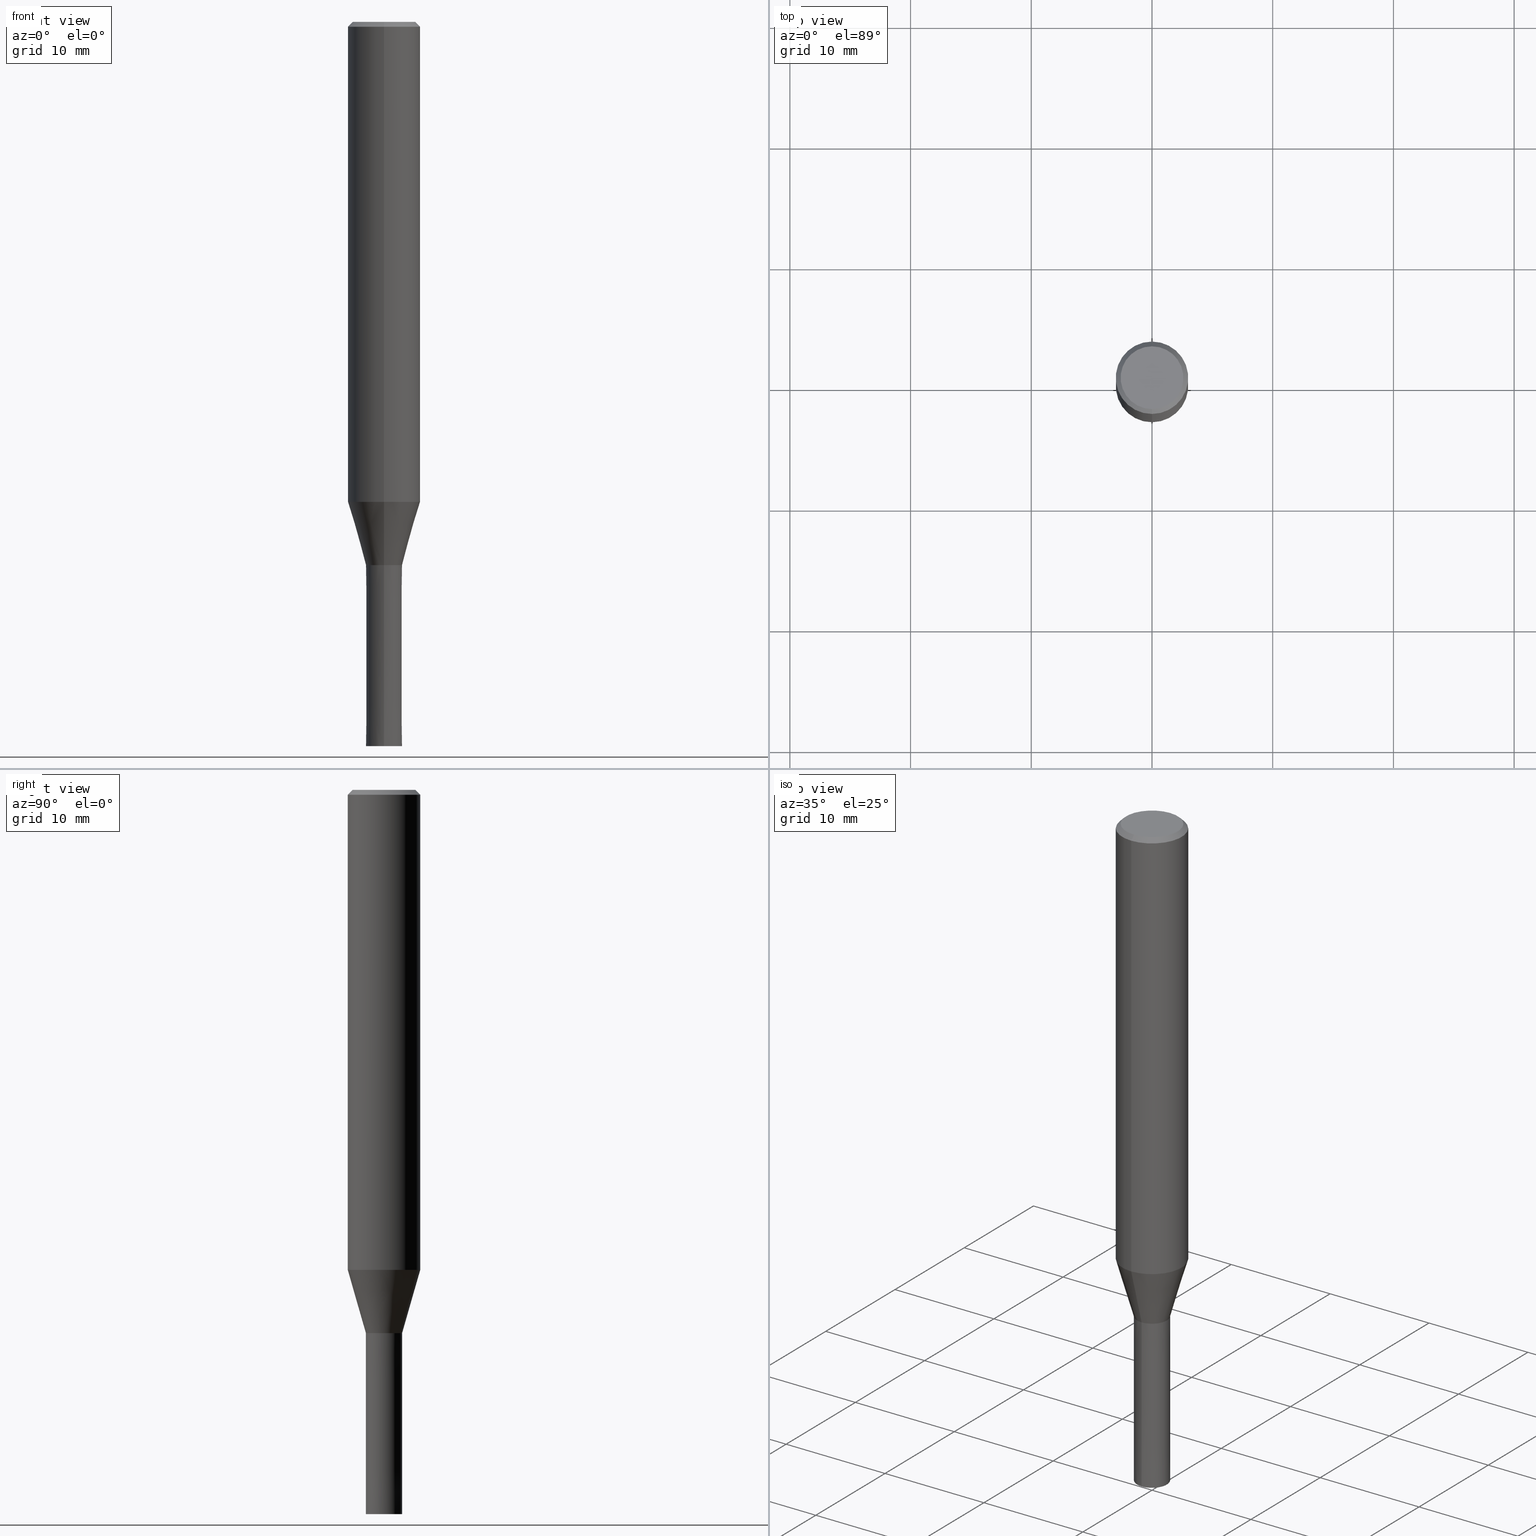
[diagram: canonical four-view strip — front | top / right | iso, engineering-drawing reading convention]
A machine part, canonical four-view strip (front | top / right | iso — engineering-drawing reading convention). The complete STEP part file that produces these views, byte-faithful:
ISO-10303-21;
HEADER;
FILE_DESCRIPTION(('no description'),'unknown implementation level');
FILE_NAME('HMS3030-1500-Huellk.stp','  ',('CIMSOURCE GmbH'),('CADClick - KiM GmbH - www.kimweb.de'),'unknown preprocess','ACIS','unknown authorization');
FILE_SCHEMA(('automotive_design'));
ENDSEC;
DATA;
#1=MECHANICAL_DESIGN_GEOMETRIC_PRESENTATION_REPRESENTATION(' ',(#14,#15,#16,#17,#18,#19,#20,#21,#22,#23,#24,#25,#26,#27,#28,#29,#30,#31,#32,#33,#34,#35,#36,#37,#38,#39,#40,#41,#42,#43,#44,#45,#46,#47,#48,#49,#50,#51,#52,#53,#54,#55,#56,#57,#58,#59,#60,#61,#62,#63,#64,#65,#66,#67,#68,#69,#70,#71,#72,#73,#74,#75,#76,#77,#78,#79,#80,#81,#82,#83,#84,#85,#86,#87,#88,#89),#10);
#2=PRODUCT_DEFINITION_CONTEXT('',#90,'design');
#3=APPLICATION_PROTOCOL_DEFINITION('INTERNATIONAL STANDARD','automotive_design',1994,#90);
#4=PRODUCT_CATEGORY_RELATIONSHIP('NONE','NONE',#91,#92);
#5=SHAPE_DEFINITION_REPRESENTATION(#93,#94);
#6=PRODUCT_DEFINITION_CONTEXT('',#95,'design');
#7=APPLICATION_PROTOCOL_DEFINITION('INTERNATIONAL STANDARD','automotive_design',1994,#95);
#8=PRODUCT_CATEGORY_RELATIONSHIP('NONE','NONE',#96,#97);
#9=SHAPE_DEFINITION_REPRESENTATION(#98,#99);
#10= (GEOMETRIC_REPRESENTATION_CONTEXT(3)GLOBAL_UNCERTAINTY_ASSIGNED_CONTEXT((#102))GLOBAL_UNIT_ASSIGNED_CONTEXT((#104,#105,#106))REPRESENTATION_CONTEXT('NONE','WORKSPACE'));
#14=STYLED_ITEM('',(#108),#109);
#15=STYLED_ITEM('',(#110),#111);
#16=STYLED_ITEM('',(#112),#113);
#17=STYLED_ITEM('',(#114),#115);
#18=STYLED_ITEM('',(#116),#117);
#19=STYLED_ITEM('',(#118),#119);
#20=STYLED_ITEM('',(#120),#121);
#21=STYLED_ITEM('',(#122),#123);
#22=STYLED_ITEM('',(#124),#125);
#23=STYLED_ITEM('',(#126),#127);
#24=STYLED_ITEM('',(#128),#129);
#25=STYLED_ITEM('',(#130),#131);
#26=STYLED_ITEM('',(#132),#133);
#27=STYLED_ITEM('',(#134),#135);
#28=STYLED_ITEM('',(#136),#137);
#29=STYLED_ITEM('',(#138),#139);
#30=STYLED_ITEM('',(#140),#141);
#31=STYLED_ITEM('',(#142),#143);
#32=STYLED_ITEM('',(#144),#145);
#33=STYLED_ITEM('',(#146),#147);
#34=STYLED_ITEM('',(#148),#149);
#35=STYLED_ITEM('',(#150),#151);
#36=STYLED_ITEM('',(#152),#153);
#37=STYLED_ITEM('',(#154),#155);
#38=STYLED_ITEM('',(#156),#157);
#39=STYLED_ITEM('',(#158),#159);
#40=STYLED_ITEM('',(#160),#161);
#41=STYLED_ITEM('',(#162),#163);
#42=STYLED_ITEM('',(#164),#165);
#43=STYLED_ITEM('',(#166),#167);
#44=STYLED_ITEM('',(#168),#169);
#45=STYLED_ITEM('',(#170),#171);
#46=STYLED_ITEM('',(#172),#173);
#47=STYLED_ITEM('',(#174),#175);
#48=STYLED_ITEM('',(#176),#177);
#49=STYLED_ITEM('',(#178),#179);
#50=STYLED_ITEM('',(#180),#181);
#51=STYLED_ITEM('',(#182),#183);
#52=STYLED_ITEM('',(#184),#185);
#53=STYLED_ITEM('',(#186),#187);
#54=STYLED_ITEM('',(#188),#189);
#55=STYLED_ITEM('',(#190),#191);
#56=STYLED_ITEM('',(#192),#193);
#57=STYLED_ITEM('',(#194),#195);
#58=STYLED_ITEM('',(#196),#197);
#59=STYLED_ITEM('',(#198),#199);
#60=STYLED_ITEM('',(#200),#201);
#61=STYLED_ITEM('',(#202),#203);
#62=STYLED_ITEM('',(#204),#205);
#63=STYLED_ITEM('',(#206),#207);
#64=STYLED_ITEM('',(#208),#209);
#65=STYLED_ITEM('',(#210),#211);
#66=STYLED_ITEM('',(#212),#213);
#67=STYLED_ITEM('',(#214),#215);
#68=STYLED_ITEM('',(#216),#217);
#69=STYLED_ITEM('',(#218),#219);
#70=STYLED_ITEM('',(#220),#221);
#71=STYLED_ITEM('',(#222),#223);
#72=STYLED_ITEM('',(#224),#225);
#73=STYLED_ITEM('',(#226),#227);
#74=STYLED_ITEM('',(#228),#229);
#75=STYLED_ITEM('',(#230),#231);
#76=STYLED_ITEM('',(#232),#233);
#77=STYLED_ITEM('',(#234),#235);
#78=STYLED_ITEM('',(#236),#237);
#79=STYLED_ITEM('',(#238),#239);
#80=STYLED_ITEM('',(#240),#241);
#81=STYLED_ITEM('',(#242),#243);
#82=STYLED_ITEM('',(#244),#245);
#83=STYLED_ITEM('',(#246),#247);
#84=STYLED_ITEM('',(#248),#249);
#85=STYLED_ITEM('',(#250),#251);
#86=STYLED_ITEM('',(#252),#253);
#87=STYLED_ITEM('',(#254),#255);
#88=STYLED_ITEM('',(#256),#257);
#89=STYLED_ITEM('',(#258),#259);
#90=APPLICATION_CONTEXT(' ');
#91=PRODUCT_CATEGORY('part','NONE');
#92=PRODUCT_RELATED_PRODUCT_CATEGORY('detail',' ',(#260));
#93=PRODUCT_DEFINITION_SHAPE('NONE','NONE',#261);
#94=ADVANCED_BREP_SHAPE_REPRESENTATION('1',(#243,#262),#10);
#95=APPLICATION_CONTEXT(' ');
#96=PRODUCT_CATEGORY('part','NONE');
#97=PRODUCT_RELATED_PRODUCT_CATEGORY('detail',' ',(#263));
#98=PRODUCT_DEFINITION_SHAPE('NONE','NONE',#264);
#99=ADVANCED_BREP_SHAPE_REPRESENTATION('2',(#211,#265),#10);
#102=UNCERTAINTY_MEASURE_WITH_UNIT(LENGTH_MEASURE(1.0E-006),#104,'','');
#104= (CONVERSION_BASED_UNIT('MILLIMETRE',#268)LENGTH_UNIT()NAMED_UNIT(#271));
#105= (NAMED_UNIT(#273)PLANE_ANGLE_UNIT()SI_UNIT($,.RADIAN.));
#106= (NAMED_UNIT(#273)SOLID_ANGLE_UNIT()SI_UNIT($,.STERADIAN.));
#108=PRESENTATION_STYLE_ASSIGNMENT((#279));
#109=EDGE_CURVE('',#139,#247,#280,.T.);
#110=PRESENTATION_STYLE_ASSIGNMENT((#281));
#111=VERTEX_POINT('',#282);
#112=PRESENTATION_STYLE_ASSIGNMENT((#283));
#113=EDGE_CURVE('',#157,#159,#284,.T.);
#114=PRESENTATION_STYLE_ASSIGNMENT((#285));
#115=VERTEX_POINT('',#286);
#116=PRESENTATION_STYLE_ASSIGNMENT((#287));
#117=EDGE_CURVE('',#215,#123,#288,.T.);
#118=PRESENTATION_STYLE_ASSIGNMENT((#289));
#119=EDGE_CURVE('',#215,#131,#290,.T.);
#120=PRESENTATION_STYLE_ASSIGNMENT((#291));
#121=EDGE_CURVE('',#155,#197,#292,.T.);
#122=PRESENTATION_STYLE_ASSIGNMENT((#293));
#123=VERTEX_POINT('',#294);
#124=PRESENTATION_STYLE_ASSIGNMENT((#295));
#125=VERTEX_POINT('',#296);
#126=PRESENTATION_STYLE_ASSIGNMENT((#297));
#127=VERTEX_POINT('',#298);
#128=PRESENTATION_STYLE_ASSIGNMENT((#299));
#129=EDGE_CURVE('',#225,#127,#300,.T.);
#130=PRESENTATION_STYLE_ASSIGNMENT((#301));
#131=VERTEX_POINT('',#302);
#132=PRESENTATION_STYLE_ASSIGNMENT((#303));
#133=EDGE_CURVE('',#157,#251,#304,.T.);
#134=PRESENTATION_STYLE_ASSIGNMENT((#305));
#135=ADVANCED_FACE('',(#306),#307,.T.);
#136=PRESENTATION_STYLE_ASSIGNMENT((#308));
#137=ADVANCED_FACE('',(#309),#310,.T.);
#138=PRESENTATION_STYLE_ASSIGNMENT((#311));
#139=VERTEX_POINT('',#312);
#140=PRESENTATION_STYLE_ASSIGNMENT((#313));
#141=ADVANCED_FACE('',(#314),#315,.T.);
#142=PRESENTATION_STYLE_ASSIGNMENT((#316));
#143=ADVANCED_FACE('',(#317),#318,.F.);
#144=PRESENTATION_STYLE_ASSIGNMENT((#319));
#145=EDGE_CURVE('',#225,#185,#320,.T.);
#146=PRESENTATION_STYLE_ASSIGNMENT((#321));
#147=EDGE_CURVE('',#161,#183,#322,.T.);
#148=PRESENTATION_STYLE_ASSIGNMENT((#323));
#149=ADVANCED_FACE('',(#324),#325,.T.);
#150=PRESENTATION_STYLE_ASSIGNMENT((#326));
#151=ADVANCED_FACE('',(#327),#328,.T.);
#152=PRESENTATION_STYLE_ASSIGNMENT((#329));
#153=EDGE_CURVE('',#247,#139,#330,.T.);
#154=PRESENTATION_STYLE_ASSIGNMENT((#331));
#155=VERTEX_POINT('',#332);
#156=PRESENTATION_STYLE_ASSIGNMENT((#333));
#157=VERTEX_POINT('',#334);
#158=PRESENTATION_STYLE_ASSIGNMENT((#335));
#159=VERTEX_POINT('',#336);
#160=PRESENTATION_STYLE_ASSIGNMENT((#337));
#161=VERTEX_POINT('',#338);
#162=PRESENTATION_STYLE_ASSIGNMENT((#339));
#163=EDGE_CURVE('',#127,#187,#340,.T.);
#164=PRESENTATION_STYLE_ASSIGNMENT((#341));
#165=EDGE_CURVE('',#227,#131,#342,.T.);
#166=PRESENTATION_STYLE_ASSIGNMENT((#343));
#167=ADVANCED_FACE('',(#344),#345,.T.);
#168=PRESENTATION_STYLE_ASSIGNMENT((#346));
#169=EDGE_CURVE('',#187,#185,#347,.T.);
#170=PRESENTATION_STYLE_ASSIGNMENT((#348));
#171=EDGE_CURVE('',#231,#197,#349,.T.);
#172=PRESENTATION_STYLE_ASSIGNMENT((#350));
#173=EDGE_CURVE('',#251,#247,#351,.T.);
#174=PRESENTATION_STYLE_ASSIGNMENT((#352));
#175=EDGE_CURVE('',#197,#155,#353,.T.);
#176=PRESENTATION_STYLE_ASSIGNMENT((#354));
#177=EDGE_CURVE('',#123,#227,#355,.T.);
#178=PRESENTATION_STYLE_ASSIGNMENT((#356));
#179=EDGE_CURVE('',#115,#251,#357,.T.);
#180=PRESENTATION_STYLE_ASSIGNMENT((#358));
#181=EDGE_CURVE('',#227,#123,#359,.T.);
#182=PRESENTATION_STYLE_ASSIGNMENT((#360));
#183=VERTEX_POINT('',#361);
#184=PRESENTATION_STYLE_ASSIGNMENT((#362));
#185=VERTEX_POINT('',#363);
#186=PRESENTATION_STYLE_ASSIGNMENT((#364));
#187=VERTEX_POINT('',#365);
#188=PRESENTATION_STYLE_ASSIGNMENT((#366));
#189=EDGE_CURVE('',#187,#127,#367,.T.);
#190=PRESENTATION_STYLE_ASSIGNMENT((#368));
#191=EDGE_CURVE('',#131,#215,#369,.T.);
#192=PRESENTATION_STYLE_ASSIGNMENT((#370));
#193=ADVANCED_FACE('',(#371,#372),#373,.T.);
#194=PRESENTATION_STYLE_ASSIGNMENT((#374));
#195=ADVANCED_FACE('',(#375),#376,.F.);
#196=PRESENTATION_STYLE_ASSIGNMENT((#377));
#197=VERTEX_POINT('',#378);
#198=PRESENTATION_STYLE_ASSIGNMENT((#379));
#199=ADVANCED_FACE('',(#380),#381,.T.);
#200=PRESENTATION_STYLE_ASSIGNMENT((#382));
#201=ADVANCED_FACE('',(#383),#384,.T.);
#202=PRESENTATION_STYLE_ASSIGNMENT((#385));
#203=EDGE_CURVE('',#159,#157,#386,.T.);
#204=PRESENTATION_STYLE_ASSIGNMENT((#387));
#205=EDGE_CURVE('',#155,#125,#388,.T.);
#206=PRESENTATION_STYLE_ASSIGNMENT((#389));
#207=ADVANCED_FACE('',(#390),#391,.T.);
#208=PRESENTATION_STYLE_ASSIGNMENT((#392));
#209=EDGE_CURVE('',#185,#225,#393,.T.);
#210=PRESENTATION_STYLE_ASSIGNMENT((#394));
#211=MANIFOLD_SOLID_BREP('2',#395);
#212=PRESENTATION_STYLE_ASSIGNMENT((#396));
#213=EDGE_CURVE('',#219,#111,#397,.T.);
#214=PRESENTATION_STYLE_ASSIGNMENT((#398));
#215=VERTEX_POINT('',#399);
#216=PRESENTATION_STYLE_ASSIGNMENT((#400));
#217=EDGE_CURVE('',#231,#125,#401,.T.);
#218=PRESENTATION_STYLE_ASSIGNMENT((#402));
#219=VERTEX_POINT('',#403);
#220=PRESENTATION_STYLE_ASSIGNMENT((#404));
#221=EDGE_CURVE('',#183,#219,#405,.T.);
#222=PRESENTATION_STYLE_ASSIGNMENT((#406));
#223=EDGE_CURVE('',#115,#159,#407,.T.);
#224=PRESENTATION_STYLE_ASSIGNMENT((#408));
#225=VERTEX_POINT('',#409);
#226=PRESENTATION_STYLE_ASSIGNMENT((#410));
#227=VERTEX_POINT('',#411);
#228=PRESENTATION_STYLE_ASSIGNMENT((#412));
#229=EDGE_CURVE('',#125,#231,#413,.T.);
#230=PRESENTATION_STYLE_ASSIGNMENT((#414));
#231=VERTEX_POINT('',#415);
#232=PRESENTATION_STYLE_ASSIGNMENT((#416));
#233=EDGE_CURVE('',#251,#115,#417,.T.);
#234=PRESENTATION_STYLE_ASSIGNMENT((#418));
#235=ADVANCED_FACE('',(#419),#420,.T.);
#236=PRESENTATION_STYLE_ASSIGNMENT((#421));
#237=ADVANCED_FACE('',(#422,#423),#424,.T.);
#238=PRESENTATION_STYLE_ASSIGNMENT((#425));
#239=EDGE_CURVE('',#111,#161,#426,.T.);
#240=PRESENTATION_STYLE_ASSIGNMENT((#427));
#241=ADVANCED_FACE('',(#428),#429,.T.);
#242=PRESENTATION_STYLE_ASSIGNMENT((#430));
#243=MANIFOLD_SOLID_BREP('1',#431);
#244=PRESENTATION_STYLE_ASSIGNMENT((#432));
#245=EDGE_CURVE('',#139,#115,#433,.T.);
#246=PRESENTATION_STYLE_ASSIGNMENT((#434));
#247=VERTEX_POINT('',#435);
#248=PRESENTATION_STYLE_ASSIGNMENT((#436));
#249=ADVANCED_FACE('',(#437,#438),#439,.T.);
#250=PRESENTATION_STYLE_ASSIGNMENT((#440));
#251=VERTEX_POINT('',#441);
#252=PRESENTATION_STYLE_ASSIGNMENT((#442));
#253=ADVANCED_FACE('',(#443,#444),#445,.T.);
#254=PRESENTATION_STYLE_ASSIGNMENT((#446));
#255=ADVANCED_FACE('',(#447),#448,.T.);
#256=PRESENTATION_STYLE_ASSIGNMENT((#449));
#257=EDGE_CURVE('',#219,#183,#450,.T.);
#258=PRESENTATION_STYLE_ASSIGNMENT((#451));
#259=EDGE_CURVE('',#161,#111,#452,.T.);
#260=PRODUCT('1','1','PART-1-DESC',(#453));
#261=PRODUCT_DEFINITION('NONE','NONE',#454,#2);
#262=AXIS2_PLACEMENT_3D('',#455,#456,#457);
#263=PRODUCT('2','2','PART-2-DESC',(#458));
#264=PRODUCT_DEFINITION('NONE','NONE',#459,#6);
#265=AXIS2_PLACEMENT_3D('',#460,#461,#462);
#268=LENGTH_MEASURE_WITH_UNIT(LENGTH_MEASURE(1.0),#463);
#271=DIMENSIONAL_EXPONENTS(1.0,0.0,0.0,0.0,0.0,0.0,0.0);
#273=DIMENSIONAL_EXPONENTS(0.0,0.0,0.0,0.0,0.0,0.0,0.0);
#279=CURVE_STYLE('',#464,POSITIVE_LENGTH_MEASURE(1.0E-006),#465);
#280=CIRCLE('',#466,3.0);
#281=POINT_STYLE(' ',#467,POSITIVE_LENGTH_MEASURE(1.0E-006),#468);
#282=CARTESIAN_POINT('',(8.26609288830105E-017,-0.675,-45.0));
#283=CURVE_STYLE('',#469,POSITIVE_LENGTH_MEASURE(1.0E-006),#470);
#284=CIRCLE('',#471,2.6);
#285=POINT_STYLE(' ',#472,POSITIVE_LENGTH_MEASURE(1.0E-006),#473);
#286=CARTESIAN_POINT('',(3.67381906146713E-016,-3.0,-0.399999999999999));
#287=CURVE_STYLE('',#474,POSITIVE_LENGTH_MEASURE(1.0E-006),#475);
#288=LINE('',#476,#477);
#289=CURVE_STYLE('',#478,POSITIVE_LENGTH_MEASURE(1.0E-006),#479);
#290=CIRCLE('',#480,0.675);
#291=CURVE_STYLE('',#481,POSITIVE_LENGTH_MEASURE(1.0E-006),#482);
#292=CIRCLE('',#483,2.99995);
#293=POINT_STYLE(' ',#484,POSITIVE_LENGTH_MEASURE(1.0E-006),#485);
#294=CARTESIAN_POINT('',(0.0,0.675,-59.9));
#295=POINT_STYLE(' ',#486,POSITIVE_LENGTH_MEASURE(1.0E-006),#487);
#296=CARTESIAN_POINT('',(0.0,1.49995,-45.0));
#297=POINT_STYLE(' ',#488,POSITIVE_LENGTH_MEASURE(1.0E-006),#489);
#298=CARTESIAN_POINT('',(0.0,1.5,-60.0));
#299=CURVE_STYLE('',#490,POSITIVE_LENGTH_MEASURE(1.0E-006),#491);
#300=LINE('',#492,#493);
#301=POINT_STYLE(' ',#494,POSITIVE_LENGTH_MEASURE(1.0E-006),#495);
#302=CARTESIAN_POINT('',(8.26609288830105E-017,-0.675,-45.0));
#303=CURVE_STYLE('',#496,POSITIVE_LENGTH_MEASURE(1.0E-006),#497);
#304=LINE('',#498,#499);
#305=SURFACE_STYLE_USAGE(.BOTH.,#500);
#306=FACE_OUTER_BOUND('',#501,.T.);
#307=CONICAL_SURFACE('',#502,2.24995,0.279258842899557);
#308=SURFACE_STYLE_USAGE(.BOTH.,#503);
#309=FACE_OUTER_BOUND('',#504,.T.);
#310=CYLINDRICAL_SURFACE('',#505,3.0);
#311=POINT_STYLE(' ',#506,POSITIVE_LENGTH_MEASURE(1.0E-006),#507);
#312=CARTESIAN_POINT('',(3.67381906146713E-016,-3.0,-39.769));
#313=SURFACE_STYLE_USAGE(.BOTH.,#508);
#314=FACE_OUTER_BOUND('',#509,.T.);
#315=CONICAL_SURFACE('',#510,1.49995,6.66666666656717E-006);
#316=SURFACE_STYLE_USAGE(.BOTH.,#511);
#317=FACE_OUTER_BOUND('',#512,.T.);
#318=CYLINDRICAL_SURFACE('',#513,0.675);
#319=CURVE_STYLE('',#514,POSITIVE_LENGTH_MEASURE(1.0E-006),#515);
#320=CIRCLE('',#516,1.4999);
#321=CURVE_STYLE('',#517,POSITIVE_LENGTH_MEASURE(1.0E-006),#518);
#322=LINE('',#519,#520);
#323=SURFACE_STYLE_USAGE(.BOTH.,#521);
#324=FACE_OUTER_BOUND('',#522,.T.);
#325=CONICAL_SURFACE('',#523,1.49995,6.66666666656717E-006);
#326=SURFACE_STYLE_USAGE(.BOTH.,#524);
#327=FACE_OUTER_BOUND('',#525,.T.);
#328=CYLINDRICAL_SURFACE('',#526,0.675);
#329=CURVE_STYLE('',#527,POSITIVE_LENGTH_MEASURE(1.0E-006),#528);
#330=CIRCLE('',#529,3.0);
#331=POINT_STYLE(' ',#530,POSITIVE_LENGTH_MEASURE(1.0E-006),#531);
#332=CARTESIAN_POINT('',(0.0,2.99995,-39.769));
#333=POINT_STYLE(' ',#532,POSITIVE_LENGTH_MEASURE(1.0E-006),#533);
#334=CARTESIAN_POINT('',(0.0,2.6,0.0));
#335=POINT_STYLE(' ',#534,POSITIVE_LENGTH_MEASURE(1.0E-006),#535);
#336=CARTESIAN_POINT('',(3.18397651993818E-016,-2.6,0.0));
#337=POINT_STYLE(' ',#536,POSITIVE_LENGTH_MEASURE(1.0E-006),#537);
#338=CARTESIAN_POINT('',(0.0,0.675,-45.0));
#339=CURVE_STYLE('',#538,POSITIVE_LENGTH_MEASURE(1.0E-006),#539);
#340=CIRCLE('',#540,1.5);
#341=CURVE_STYLE('',#541,POSITIVE_LENGTH_MEASURE(1.0E-006),#542);
#342=LINE('',#543,#544);
#343=SURFACE_STYLE_USAGE(.BOTH.,#545);
#344=FACE_OUTER_BOUND('',#546,.T.);
#345=CONICAL_SURFACE('',#547,2.24995,0.279258842899557);
#346=CURVE_STYLE('',#548,POSITIVE_LENGTH_MEASURE(1.0E-006),#549);
#347=LINE('',#550,#551);
#348=CURVE_STYLE('',#552,POSITIVE_LENGTH_MEASURE(1.0E-006),#553);
#349=LINE('',#554,#555);
#350=CURVE_STYLE('',#556,POSITIVE_LENGTH_MEASURE(1.0E-006),#557);
#351=LINE('',#558,#559);
#352=CURVE_STYLE('',#560,POSITIVE_LENGTH_MEASURE(1.0E-006),#561);
#353=CIRCLE('',#562,2.99995);
#354=CURVE_STYLE('',#563,POSITIVE_LENGTH_MEASURE(1.0E-006),#564);
#355=CIRCLE('',#565,0.675);
#356=CURVE_STYLE('',#566,POSITIVE_LENGTH_MEASURE(1.0E-006),#567);
#357=CIRCLE('',#568,3.0);
#358=CURVE_STYLE('',#569,POSITIVE_LENGTH_MEASURE(1.0E-006),#570);
#359=CIRCLE('',#571,0.675);
#360=POINT_STYLE(' ',#572,POSITIVE_LENGTH_MEASURE(1.0E-006),#573);
#361=CARTESIAN_POINT('',(0.0,0.675,-60.0));
#362=POINT_STYLE(' ',#574,POSITIVE_LENGTH_MEASURE(1.0E-006),#575);
#363=CARTESIAN_POINT('',(1.83678707009818E-016,-1.4999,-45.0));
#364=POINT_STYLE(' ',#576,POSITIVE_LENGTH_MEASURE(1.0E-006),#577);
#365=CARTESIAN_POINT('',(1.83690953073357E-016,-1.5,-60.0));
#366=CURVE_STYLE('',#578,POSITIVE_LENGTH_MEASURE(1.0E-006),#579);
#367=CIRCLE('',#580,1.5);
#368=CURVE_STYLE('',#581,POSITIVE_LENGTH_MEASURE(1.0E-006),#582);
#369=CIRCLE('',#583,0.675);
#370=SURFACE_STYLE_USAGE(.BOTH.,#584);
#371=FACE_OUTER_BOUND('',#585,.T.);
#372=FACE_BOUND('',#586,.T.);
#373=PLANE('',#587);
#374=SURFACE_STYLE_USAGE(.BOTH.,#588);
#375=FACE_OUTER_BOUND('',#589,.T.);
#376=CYLINDRICAL_SURFACE('',#590,0.675);
#377=POINT_STYLE(' ',#591,POSITIVE_LENGTH_MEASURE(1.0E-006),#592);
#378=CARTESIAN_POINT('',(3.67375783114944E-016,-2.99995,-39.769));
#379=SURFACE_STYLE_USAGE(.BOTH.,#593);
#380=FACE_OUTER_BOUND('',#594,.T.);
#381=CONICAL_SURFACE('',#595,2.8,0.78539816339745);
#382=SURFACE_STYLE_USAGE(.BOTH.,#596);
#383=FACE_OUTER_BOUND('',#597,.T.);
#384=CYLINDRICAL_SURFACE('',#598,0.675);
#385=CURVE_STYLE('',#599,POSITIVE_LENGTH_MEASURE(1.0E-006),#600);
#386=CIRCLE('',#601,2.6);
#387=CURVE_STYLE('',#602,POSITIVE_LENGTH_MEASURE(1.0E-006),#603);
#388=LINE('',#604,#605);
#389=SURFACE_STYLE_USAGE(.BOTH.,#606);
#390=FACE_OUTER_BOUND('',#607,.T.);
#391=PLANE('',#608);
#392=CURVE_STYLE('',#609,POSITIVE_LENGTH_MEASURE(1.0E-006),#610);
#393=CIRCLE('',#611,1.4999);
#394=SURFACE_STYLE_USAGE(.BOTH.,#612);
#395=CLOSED_SHELL('',(#195,#141,#237,#149,#249,#143));
#396=CURVE_STYLE('',#613,POSITIVE_LENGTH_MEASURE(1.0E-006),#614);
#397=LINE('',#615,#616);
#398=POINT_STYLE(' ',#617,POSITIVE_LENGTH_MEASURE(1.0E-006),#618);
#399=CARTESIAN_POINT('',(0.0,0.675,-45.0));
#400=CURVE_STYLE('',#619,POSITIVE_LENGTH_MEASURE(1.0E-006),#620);
#401=CIRCLE('',#621,1.49995);
#402=POINT_STYLE(' ',#622,POSITIVE_LENGTH_MEASURE(1.0E-006),#623);
#403=CARTESIAN_POINT('',(8.26609288830105E-017,-0.675,-60.0));
#404=CURVE_STYLE('',#624,POSITIVE_LENGTH_MEASURE(1.0E-006),#625);
#405=CIRCLE('',#626,0.675);
#406=CURVE_STYLE('',#627,POSITIVE_LENGTH_MEASURE(1.0E-006),#628);
#407=LINE('',#629,#630);
#408=POINT_STYLE(' ',#631,POSITIVE_LENGTH_MEASURE(1.0E-006),#632);
#409=CARTESIAN_POINT('',(0.0,1.4999,-45.0));
#410=POINT_STYLE(' ',#633,POSITIVE_LENGTH_MEASURE(1.0E-006),#634);
#411=CARTESIAN_POINT('',(8.26609288830105E-017,-0.675,-59.9));
#412=CURVE_STYLE('',#635,POSITIVE_LENGTH_MEASURE(1.0E-006),#636);
#413=CIRCLE('',#637,1.49995);
#414=POINT_STYLE(' ',#638,POSITIVE_LENGTH_MEASURE(1.0E-006),#639);
#415=CARTESIAN_POINT('',(1.83684830041587E-016,-1.49995,-45.0));
#416=CURVE_STYLE('',#640,POSITIVE_LENGTH_MEASURE(1.0E-006),#641);
#417=CIRCLE('',#642,3.0);
#418=SURFACE_STYLE_USAGE(.BOTH.,#643);
#419=FACE_OUTER_BOUND('',#644,.T.);
#420=CONICAL_SURFACE('',#645,2.8,0.78539816339745);
#421=SURFACE_STYLE_USAGE(.BOTH.,#646);
#422=FACE_OUTER_BOUND('',#647,.T.);
#423=FACE_BOUND('',#648,.T.);
#424=PLANE('',#649);
#425=CURVE_STYLE('',#650,POSITIVE_LENGTH_MEASURE(1.0E-006),#651);
#426=CIRCLE('',#652,0.675);
#427=SURFACE_STYLE_USAGE(.BOTH.,#653);
#428=FACE_OUTER_BOUND('',#654,.T.);
#429=CYLINDRICAL_SURFACE('',#655,3.0);
#430=SURFACE_STYLE_USAGE(.BOTH.,#656);
#431=CLOSED_SHELL('',(#201,#167,#241,#199,#193,#207,#235,#137,#135,#253,#151,#255));
#432=CURVE_STYLE('',#657,POSITIVE_LENGTH_MEASURE(1.0E-006),#658);
#433=LINE('',#659,#660);
#434=POINT_STYLE(' ',#661,POSITIVE_LENGTH_MEASURE(1.0E-006),#662);
#435=CARTESIAN_POINT('',(0.0,3.0,-39.769));
#436=SURFACE_STYLE_USAGE(.BOTH.,#663);
#437=FACE_OUTER_BOUND('',#664,.T.);
#438=FACE_BOUND('',#665,.T.);
#439=PLANE('',#666);
#440=POINT_STYLE(' ',#667,POSITIVE_LENGTH_MEASURE(1.0E-006),#668);
#441=CARTESIAN_POINT('',(0.0,3.0,-0.399999999999999));
#442=SURFACE_STYLE_USAGE(.BOTH.,#669);
#443=FACE_BOUND('',#670,.T.);
#444=FACE_OUTER_BOUND('',#671,.T.);
#445=PLANE('',#672);
#446=SURFACE_STYLE_USAGE(.BOTH.,#673);
#447=FACE_OUTER_BOUND('',#674,.T.);
#448=PLANE('',#675);
#449=CURVE_STYLE('',#676,POSITIVE_LENGTH_MEASURE(1.0E-006),#677);
#450=CIRCLE('',#678,0.675);
#451=CURVE_STYLE('',#679,POSITIVE_LENGTH_MEASURE(1.0E-006),#680);
#452=CIRCLE('',#681,0.675);
#453=PRODUCT_CONTEXT('',#90,'mechanical');
#454=PRODUCT_DEFINITION_FORMATION_WITH_SPECIFIED_SOURCE(' ','NONE',#260,.NOT_KNOWN.);
#455=CARTESIAN_POINT('',(0.0,0.0,0.0));
#456=DIRECTION('',(0.0,0.0,1.0));
#457=DIRECTION('',(1.0,0.0,0.0));
#458=PRODUCT_CONTEXT('',#95,'mechanical');
#459=PRODUCT_DEFINITION_FORMATION_WITH_SPECIFIED_SOURCE(' ','NONE',#263,.NOT_KNOWN.);
#460=CARTESIAN_POINT('',(0.0,0.0,0.0));
#461=DIRECTION('',(0.0,0.0,1.0));
#462=DIRECTION('',(1.0,0.0,0.0));
#463= (NAMED_UNIT(#271)LENGTH_UNIT()SI_UNIT(.MILLI.,.METRE.));
#464=DRAUGHTING_PRE_DEFINED_CURVE_FONT('continuous');
#465=COLOUR_RGB('',0.498039215803146,0.498039215803146,0.498039215803146);
#466=AXIS2_PLACEMENT_3D('',#683,#684,#685);
#467=PRE_DEFINED_MARKER('');
#468=COLOUR_RGB('',0.800000011920929,0.800000011920929,0.800000011920929);
#469=DRAUGHTING_PRE_DEFINED_CURVE_FONT('continuous');
#470=COLOUR_RGB('',0.498039215803146,0.498039215803146,0.498039215803146);
#471=AXIS2_PLACEMENT_3D('',#686,#687,#688);
#472=PRE_DEFINED_MARKER('');
#473=COLOUR_RGB('',0.498039215803146,0.498039215803146,0.498039215803146);
#474=DRAUGHTING_PRE_DEFINED_CURVE_FONT('continuous');
#475=COLOUR_RGB('',0.498039215803146,0.498039215803146,0.498039215803146);
#476=CARTESIAN_POINT('',(-8.26609288830105E-017,0.675,-52.45));
#477=VECTOR('',#689,1.0);
#478=DRAUGHTING_PRE_DEFINED_CURVE_FONT('continuous');
#479=COLOUR_RGB('',0.498039215803146,0.498039215803146,0.498039215803146);
#480=AXIS2_PLACEMENT_3D('',#690,#691,#692);
#481=DRAUGHTING_PRE_DEFINED_CURVE_FONT('continuous');
#482=COLOUR_RGB('',0.498039215803146,0.498039215803146,0.498039215803146);
#483=AXIS2_PLACEMENT_3D('',#693,#694,#695);
#484=PRE_DEFINED_MARKER('');
#485=COLOUR_RGB('',0.498039215803146,0.498039215803146,0.498039215803146);
#486=PRE_DEFINED_MARKER('');
#487=COLOUR_RGB('',0.498039215803146,0.498039215803146,0.498039215803146);
#488=PRE_DEFINED_MARKER('');
#489=COLOUR_RGB('',0.800000011920929,0.800000011920929,0.800000011920929);
#490=DRAUGHTING_PRE_DEFINED_CURVE_FONT('continuous');
#491=COLOUR_RGB('',0.800000011920929,0.800000011920929,0.800000011920929);
#492=CARTESIAN_POINT('',(-1.83684830041587E-016,1.49995,-52.5));
#493=VECTOR('',#696,1.0);
#494=PRE_DEFINED_MARKER('');
#495=COLOUR_RGB('',0.498039215803146,0.498039215803146,0.498039215803146);
#496=DRAUGHTING_PRE_DEFINED_CURVE_FONT('continuous');
#497=COLOUR_RGB('',0.498039215803146,0.498039215803146,0.498039215803146);
#498=CARTESIAN_POINT('',(-3.42889779070266E-016,2.8,-0.200000000000003));
#499=VECTOR('',#697,1.0);
#500=SURFACE_SIDE_STYLE('',(#698));
#501=EDGE_LOOP('',(#699,#700,#701,#702));
#502=AXIS2_PLACEMENT_3D('',#703,#704,#705);
#503=SURFACE_SIDE_STYLE('',(#706));
#504=EDGE_LOOP('',(#707,#708,#709,#710));
#505=AXIS2_PLACEMENT_3D('',#711,#712,#713);
#506=PRE_DEFINED_MARKER('');
#507=COLOUR_RGB('',0.498039215803146,0.498039215803146,0.498039215803146);
#508=SURFACE_SIDE_STYLE('',(#714));
#509=EDGE_LOOP('',(#715,#716,#717,#718));
#510=AXIS2_PLACEMENT_3D('',#719,#720,#721);
#511=SURFACE_SIDE_STYLE('',(#722));
#512=EDGE_LOOP('',(#723,#724,#725,#726));
#513=AXIS2_PLACEMENT_3D('',#727,#728,#729);
#514=DRAUGHTING_PRE_DEFINED_CURVE_FONT('continuous');
#515=COLOUR_RGB('',0.800000011920929,0.800000011920929,0.800000011920929);
#516=AXIS2_PLACEMENT_3D('',#730,#731,#732);
#517=DRAUGHTING_PRE_DEFINED_CURVE_FONT('continuous');
#518=COLOUR_RGB('',0.800000011920929,0.800000011920929,0.800000011920929);
#519=CARTESIAN_POINT('',(-8.26609288830105E-017,0.675,-52.5));
#520=VECTOR('',#733,1.0);
#521=SURFACE_SIDE_STYLE('',(#734));
#522=EDGE_LOOP('',(#735,#736,#737,#738));
#523=AXIS2_PLACEMENT_3D('',#739,#740,#741);
#524=SURFACE_SIDE_STYLE('',(#742));
#525=EDGE_LOOP('',(#743,#744,#745,#746));
#526=AXIS2_PLACEMENT_3D('',#747,#748,#749);
#527=DRAUGHTING_PRE_DEFINED_CURVE_FONT('continuous');
#528=COLOUR_RGB('',0.498039215803146,0.498039215803146,0.498039215803146);
#529=AXIS2_PLACEMENT_3D('',#750,#751,#752);
#530=PRE_DEFINED_MARKER('');
#531=COLOUR_RGB('',0.498039215803146,0.498039215803146,0.498039215803146);
#532=PRE_DEFINED_MARKER('');
#533=COLOUR_RGB('',0.498039215803146,0.498039215803146,0.498039215803146);
#534=PRE_DEFINED_MARKER('');
#535=COLOUR_RGB('',0.498039215803146,0.498039215803146,0.498039215803146);
#536=PRE_DEFINED_MARKER('');
#537=COLOUR_RGB('',0.800000011920929,0.800000011920929,0.800000011920929);
#538=DRAUGHTING_PRE_DEFINED_CURVE_FONT('continuous');
#539=COLOUR_RGB('',0.800000011920929,0.800000011920929,0.800000011920929);
#540=AXIS2_PLACEMENT_3D('',#753,#754,#755);
#541=DRAUGHTING_PRE_DEFINED_CURVE_FONT('continuous');
#542=COLOUR_RGB('',0.498039215803146,0.498039215803146,0.498039215803146);
#543=CARTESIAN_POINT('',(8.26609288830105E-017,-0.675,-52.45));
#544=VECTOR('',#756,1.0);
#545=SURFACE_SIDE_STYLE('',(#757));
#546=EDGE_LOOP('',(#758,#759,#760,#761));
#547=AXIS2_PLACEMENT_3D('',#762,#763,#764);
#548=DRAUGHTING_PRE_DEFINED_CURVE_FONT('continuous');
#549=COLOUR_RGB('',0.800000011920929,0.800000011920929,0.800000011920929);
#550=CARTESIAN_POINT('',(1.83684830041587E-016,-1.49995,-52.5));
#551=VECTOR('',#765,1.0);
#552=DRAUGHTING_PRE_DEFINED_CURVE_FONT('continuous');
#553=COLOUR_RGB('',0.498039215803146,0.498039215803146,0.498039215803146);
#554=CARTESIAN_POINT('',(2.75530306578266E-016,-2.24995,-42.3845));
#555=VECTOR('',#766,1.0);
#556=DRAUGHTING_PRE_DEFINED_CURVE_FONT('continuous');
#557=COLOUR_RGB('',0.498039215803146,0.498039215803146,0.498039215803146);
#558=CARTESIAN_POINT('',(-3.67381906146713E-016,3.0,-20.0845));
#559=VECTOR('',#767,1.0);
#560=DRAUGHTING_PRE_DEFINED_CURVE_FONT('continuous');
#561=COLOUR_RGB('',0.498039215803146,0.498039215803146,0.498039215803146);
#562=AXIS2_PLACEMENT_3D('',#768,#769,#770);
#563=DRAUGHTING_PRE_DEFINED_CURVE_FONT('continuous');
#564=COLOUR_RGB('',0.498039215803146,0.498039215803146,0.498039215803146);
#565=AXIS2_PLACEMENT_3D('',#771,#772,#773);
#566=DRAUGHTING_PRE_DEFINED_CURVE_FONT('continuous');
#567=COLOUR_RGB('',0.498039215803146,0.498039215803146,0.498039215803146);
#568=AXIS2_PLACEMENT_3D('',#774,#775,#776);
#569=DRAUGHTING_PRE_DEFINED_CURVE_FONT('continuous');
#570=COLOUR_RGB('',0.498039215803146,0.498039215803146,0.498039215803146);
#571=AXIS2_PLACEMENT_3D('',#777,#778,#779);
#572=PRE_DEFINED_MARKER('');
#573=COLOUR_RGB('',0.800000011920929,0.800000011920929,0.800000011920929);
#574=PRE_DEFINED_MARKER('');
#575=COLOUR_RGB('',0.800000011920929,0.800000011920929,0.800000011920929);
#576=PRE_DEFINED_MARKER('');
#577=COLOUR_RGB('',0.800000011920929,0.800000011920929,0.800000011920929);
#578=DRAUGHTING_PRE_DEFINED_CURVE_FONT('continuous');
#579=COLOUR_RGB('',0.800000011920929,0.800000011920929,0.800000011920929);
#580=AXIS2_PLACEMENT_3D('',#780,#781,#782);
#581=DRAUGHTING_PRE_DEFINED_CURVE_FONT('continuous');
#582=COLOUR_RGB('',0.498039215803146,0.498039215803146,0.498039215803146);
#583=AXIS2_PLACEMENT_3D('',#783,#784,#785);
#584=SURFACE_SIDE_STYLE('',(#786));
#585=EDGE_LOOP('',(#787,#788));
#586=EDGE_LOOP('',(#789,#790));
#587=AXIS2_PLACEMENT_3D('',#791,#792,#793);
#588=SURFACE_SIDE_STYLE('',(#794));
#589=EDGE_LOOP('',(#795,#796,#797,#798));
#590=AXIS2_PLACEMENT_3D('',#799,#800,#801);
#591=PRE_DEFINED_MARKER('');
#592=COLOUR_RGB('',0.498039215803146,0.498039215803146,0.498039215803146);
#593=SURFACE_SIDE_STYLE('',(#802));
#594=EDGE_LOOP('',(#803,#804,#805,#806));
#595=AXIS2_PLACEMENT_3D('',#807,#808,#809);
#596=SURFACE_SIDE_STYLE('',(#810));
#597=EDGE_LOOP('',(#811,#812,#813,#814));
#598=AXIS2_PLACEMENT_3D('',#815,#816,#817);
#599=DRAUGHTING_PRE_DEFINED_CURVE_FONT('continuous');
#600=COLOUR_RGB('',0.498039215803146,0.498039215803146,0.498039215803146);
#601=AXIS2_PLACEMENT_3D('',#818,#819,#820);
#602=DRAUGHTING_PRE_DEFINED_CURVE_FONT('continuous');
#603=COLOUR_RGB('',0.498039215803146,0.498039215803146,0.498039215803146);
#604=CARTESIAN_POINT('',(-2.75530306578266E-016,2.24995,-42.3845));
#605=VECTOR('',#821,1.0);
#606=SURFACE_SIDE_STYLE('',(#822));
#607=EDGE_LOOP('',(#823,#824));
#608=AXIS2_PLACEMENT_3D('',#825,#826,#827);
#609=DRAUGHTING_PRE_DEFINED_CURVE_FONT('continuous');
#610=COLOUR_RGB('',0.800000011920929,0.800000011920929,0.800000011920929);
#611=AXIS2_PLACEMENT_3D('',#828,#829,#830);
#612=SURFACE_SIDE_STYLE('',(#831));
#613=DRAUGHTING_PRE_DEFINED_CURVE_FONT('continuous');
#614=COLOUR_RGB('',0.800000011920929,0.800000011920929,0.800000011920929);
#615=CARTESIAN_POINT('',(8.26609288830105E-017,-0.675,-52.5));
#616=VECTOR('',#832,1.0);
#617=PRE_DEFINED_MARKER('');
#618=COLOUR_RGB('',0.498039215803146,0.498039215803146,0.498039215803146);
#619=DRAUGHTING_PRE_DEFINED_CURVE_FONT('continuous');
#620=COLOUR_RGB('',0.498039215803146,0.498039215803146,0.498039215803146);
#621=AXIS2_PLACEMENT_3D('',#833,#834,#835);
#622=PRE_DEFINED_MARKER('');
#623=COLOUR_RGB('',0.800000011920929,0.800000011920929,0.800000011920929);
#624=DRAUGHTING_PRE_DEFINED_CURVE_FONT('continuous');
#625=COLOUR_RGB('',0.800000011920929,0.800000011920929,0.800000011920929);
#626=AXIS2_PLACEMENT_3D('',#836,#837,#838);
#627=DRAUGHTING_PRE_DEFINED_CURVE_FONT('continuous');
#628=COLOUR_RGB('',0.498039215803146,0.498039215803146,0.498039215803146);
#629=CARTESIAN_POINT('',(3.42889779070266E-016,-2.8,-0.200000000000003));
#630=VECTOR('',#839,1.0);
#631=PRE_DEFINED_MARKER('');
#632=COLOUR_RGB('',0.800000011920929,0.800000011920929,0.800000011920929);
#633=PRE_DEFINED_MARKER('');
#634=COLOUR_RGB('',0.498039215803146,0.498039215803146,0.498039215803146);
#635=DRAUGHTING_PRE_DEFINED_CURVE_FONT('continuous');
#636=COLOUR_RGB('',0.498039215803146,0.498039215803146,0.498039215803146);
#637=AXIS2_PLACEMENT_3D('',#840,#841,#842);
#638=PRE_DEFINED_MARKER('');
#639=COLOUR_RGB('',0.498039215803146,0.498039215803146,0.498039215803146);
#640=DRAUGHTING_PRE_DEFINED_CURVE_FONT('continuous');
#641=COLOUR_RGB('',0.498039215803146,0.498039215803146,0.498039215803146);
#642=AXIS2_PLACEMENT_3D('',#843,#844,#845);
#643=SURFACE_SIDE_STYLE('',(#846));
#644=EDGE_LOOP('',(#847,#848,#849,#850));
#645=AXIS2_PLACEMENT_3D('',#851,#852,#853);
#646=SURFACE_SIDE_STYLE('',(#854));
#647=EDGE_LOOP('',(#855,#856));
#648=EDGE_LOOP('',(#857,#858));
#649=AXIS2_PLACEMENT_3D('',#859,#860,#861);
#650=DRAUGHTING_PRE_DEFINED_CURVE_FONT('continuous');
#651=COLOUR_RGB('',0.800000011920929,0.800000011920929,0.800000011920929);
#652=AXIS2_PLACEMENT_3D('',#862,#863,#864);
#653=SURFACE_SIDE_STYLE('',(#865));
#654=EDGE_LOOP('',(#866,#867,#868,#869));
#655=AXIS2_PLACEMENT_3D('',#870,#871,#872);
#656=SURFACE_SIDE_STYLE('',(#873));
#657=DRAUGHTING_PRE_DEFINED_CURVE_FONT('continuous');
#658=COLOUR_RGB('',0.498039215803146,0.498039215803146,0.498039215803146);
#659=CARTESIAN_POINT('',(3.67381906146713E-016,-3.0,-20.0845));
#660=VECTOR('',#874,1.0);
#661=PRE_DEFINED_MARKER('');
#662=COLOUR_RGB('',0.498039215803146,0.498039215803146,0.498039215803146);
#663=SURFACE_SIDE_STYLE('',(#875));
#664=EDGE_LOOP('',(#876,#877));
#665=EDGE_LOOP('',(#878,#879));
#666=AXIS2_PLACEMENT_3D('',#880,#881,#882);
#667=PRE_DEFINED_MARKER('');
#668=COLOUR_RGB('',0.498039215803146,0.498039215803146,0.498039215803146);
#669=SURFACE_SIDE_STYLE('',(#883));
#670=EDGE_LOOP('',(#884,#885));
#671=EDGE_LOOP('',(#886,#887));
#672=AXIS2_PLACEMENT_3D('',#888,#889,#890);
#673=SURFACE_SIDE_STYLE('',(#891));
#674=EDGE_LOOP('',(#892,#893));
#675=AXIS2_PLACEMENT_3D('',#894,#895,#896);
#676=DRAUGHTING_PRE_DEFINED_CURVE_FONT('continuous');
#677=COLOUR_RGB('',0.800000011920929,0.800000011920929,0.800000011920929);
#678=AXIS2_PLACEMENT_3D('',#897,#898,#899);
#679=DRAUGHTING_PRE_DEFINED_CURVE_FONT('continuous');
#680=COLOUR_RGB('',0.800000011920929,0.800000011920929,0.800000011920929);
#681=AXIS2_PLACEMENT_3D('',#900,#901,#902);
#683=CARTESIAN_POINT('',(0.0,0.0,-39.769));
#684=DIRECTION('',(0.0,0.0,-1.0));
#685=DIRECTION('',(0.0,1.0,0.0));
#686=CARTESIAN_POINT('',(0.0,0.0,0.0));
#687=DIRECTION('',(0.0,0.0,-1.0));
#688=DIRECTION('',(0.0,1.0,0.0));
#689=DIRECTION('',(0.0,0.0,-1.0));
#690=CARTESIAN_POINT('',(0.0,0.0,-45.0));
#691=DIRECTION('',(0.0,0.0,-1.0));
#692=DIRECTION('',(0.0,1.0,0.0));
#693=CARTESIAN_POINT('',(0.0,0.0,-39.769));
#694=DIRECTION('',(0.0,0.0,-1.0));
#695=DIRECTION('',(0.0,1.0,0.0));
#696=DIRECTION('',(-8.16404235863353E-022,6.66666666651778E-006,-0.999999999977778));
#697=DIRECTION('',(-8.65927457071937E-017,0.707106781186549,-0.707106781186546));
#698=SURFACE_STYLE_FILL_AREA(#903);
#699=ORIENTED_EDGE('',*,*,#205,.T.);
#700=ORIENTED_EDGE('',*,*,#217,.F.);
#701=ORIENTED_EDGE('',*,*,#171,.T.);
#702=ORIENTED_EDGE('',*,*,#175,.T.);
#703=CARTESIAN_POINT('',(0.0,0.0,-42.3845));
#704=DIRECTION('',(-0.0,-0.0,1.0));
#705=DIRECTION('',(0.0,1.0,0.0));
#706=SURFACE_STYLE_FILL_AREA(#904);
#707=ORIENTED_EDGE('',*,*,#173,.T.);
#708=ORIENTED_EDGE('',*,*,#109,.F.);
#709=ORIENTED_EDGE('',*,*,#245,.T.);
#710=ORIENTED_EDGE('',*,*,#179,.T.);
#711=CARTESIAN_POINT('',(0.0,0.0,-20.0845));
#712=DIRECTION('',(-0.0,-0.0,1.0));
#713=DIRECTION('',(0.0,1.0,0.0));
#714=SURFACE_STYLE_FILL_AREA(#905);
#715=ORIENTED_EDGE('',*,*,#129,.F.);
#716=ORIENTED_EDGE('',*,*,#145,.T.);
#717=ORIENTED_EDGE('',*,*,#169,.F.);
#718=ORIENTED_EDGE('',*,*,#163,.F.);
#719=CARTESIAN_POINT('',(0.0,0.0,-52.5));
#720=DIRECTION('',(0.0,-0.0,-1.0));
#721=DIRECTION('',(0.0,1.0,0.0));
#722=SURFACE_STYLE_FILL_AREA(#906);
#723=ORIENTED_EDGE('',*,*,#147,.T.);
#724=ORIENTED_EDGE('',*,*,#221,.T.);
#725=ORIENTED_EDGE('',*,*,#213,.T.);
#726=ORIENTED_EDGE('',*,*,#259,.F.);
#727=CARTESIAN_POINT('',(0.0,0.0,-52.5));
#728=DIRECTION('',(-0.0,-0.0,1.0));
#729=DIRECTION('',(0.0,1.0,0.0));
#730=CARTESIAN_POINT('',(0.0,0.0,-45.0));
#731=DIRECTION('',(0.0,0.0,-1.0));
#732=DIRECTION('',(0.0,1.0,0.0));
#733=DIRECTION('',(0.0,-0.0,-1.0));
#734=SURFACE_STYLE_FILL_AREA(#907);
#735=ORIENTED_EDGE('',*,*,#129,.T.);
#736=ORIENTED_EDGE('',*,*,#189,.F.);
#737=ORIENTED_EDGE('',*,*,#169,.T.);
#738=ORIENTED_EDGE('',*,*,#209,.T.);
#739=CARTESIAN_POINT('',(0.0,0.0,-52.5));
#740=DIRECTION('',(0.0,-0.0,-1.0));
#741=DIRECTION('',(0.0,1.0,0.0));
#742=SURFACE_STYLE_FILL_AREA(#908);
#743=ORIENTED_EDGE('',*,*,#117,.T.);
#744=ORIENTED_EDGE('',*,*,#181,.F.);
#745=ORIENTED_EDGE('',*,*,#165,.T.);
#746=ORIENTED_EDGE('',*,*,#191,.T.);
#747=CARTESIAN_POINT('',(0.0,0.0,-52.45));
#748=DIRECTION('',(-0.0,-0.0,1.0));
#749=DIRECTION('',(0.0,1.0,0.0));
#750=CARTESIAN_POINT('',(0.0,0.0,-39.769));
#751=DIRECTION('',(0.0,0.0,-1.0));
#752=DIRECTION('',(0.0,1.0,0.0));
#753=CARTESIAN_POINT('',(0.0,0.0,-60.0));
#754=DIRECTION('',(0.0,0.0,-1.0));
#755=DIRECTION('',(0.0,1.0,0.0));
#756=DIRECTION('',(-0.0,-0.0,1.0));
#757=SURFACE_STYLE_FILL_AREA(#909);
#758=ORIENTED_EDGE('',*,*,#205,.F.);
#759=ORIENTED_EDGE('',*,*,#121,.T.);
#760=ORIENTED_EDGE('',*,*,#171,.F.);
#761=ORIENTED_EDGE('',*,*,#229,.F.);
#762=CARTESIAN_POINT('',(0.0,0.0,-42.3845));
#763=DIRECTION('',(-0.0,-0.0,1.0));
#764=DIRECTION('',(0.0,1.0,0.0));
#765=DIRECTION('',(-8.16404235863353E-022,6.66666666651778E-006,0.999999999977778));
#766=DIRECTION('',(3.37554511665356E-017,-0.275643279664313,0.961259997282682));
#767=DIRECTION('',(0.0,0.0,-1.0));
#768=CARTESIAN_POINT('',(0.0,0.0,-39.769));
#769=DIRECTION('',(0.0,0.0,-1.0));
#770=DIRECTION('',(0.0,1.0,0.0));
#771=CARTESIAN_POINT('',(0.0,0.0,-59.9));
#772=DIRECTION('',(0.0,0.0,-1.0));
#773=DIRECTION('',(0.0,1.0,0.0));
#774=CARTESIAN_POINT('',(0.0,0.0,-0.399999999999999));
#775=DIRECTION('',(0.0,0.0,-1.0));
#776=DIRECTION('',(0.0,1.0,0.0));
#777=CARTESIAN_POINT('',(0.0,0.0,-59.9));
#778=DIRECTION('',(0.0,0.0,-1.0));
#779=DIRECTION('',(0.0,1.0,0.0));
#780=CARTESIAN_POINT('',(0.0,0.0,-60.0));
#781=DIRECTION('',(0.0,0.0,-1.0));
#782=DIRECTION('',(0.0,1.0,0.0));
#783=CARTESIAN_POINT('',(0.0,0.0,-45.0));
#784=DIRECTION('',(0.0,0.0,-1.0));
#785=DIRECTION('',(0.0,1.0,0.0));
#786=SURFACE_STYLE_FILL_AREA(#910);
#787=ORIENTED_EDGE('',*,*,#153,.T.);
#788=ORIENTED_EDGE('',*,*,#109,.T.);
#789=ORIENTED_EDGE('',*,*,#121,.F.);
#790=ORIENTED_EDGE('',*,*,#175,.F.);
#791=CARTESIAN_POINT('',(0.0,1.5,-39.769));
#792=DIRECTION('',(0.0,0.0,-1.0));
#793=DIRECTION('',(0.0,1.0,0.0));
#794=SURFACE_STYLE_FILL_AREA(#911);
#795=ORIENTED_EDGE('',*,*,#147,.F.);
#796=ORIENTED_EDGE('',*,*,#239,.F.);
#797=ORIENTED_EDGE('',*,*,#213,.F.);
#798=ORIENTED_EDGE('',*,*,#257,.T.);
#799=CARTESIAN_POINT('',(0.0,0.0,-52.5));
#800=DIRECTION('',(-0.0,-0.0,1.0));
#801=DIRECTION('',(0.0,1.0,0.0));
#802=SURFACE_STYLE_FILL_AREA(#912);
#803=ORIENTED_EDGE('',*,*,#133,.F.);
#804=ORIENTED_EDGE('',*,*,#113,.T.);
#805=ORIENTED_EDGE('',*,*,#223,.F.);
#806=ORIENTED_EDGE('',*,*,#233,.F.);
#807=CARTESIAN_POINT('',(0.0,0.0,-0.200000000000003));
#808=DIRECTION('',(0.0,-0.0,-1.0));
#809=DIRECTION('',(0.0,1.0,0.0));
#810=SURFACE_STYLE_FILL_AREA(#913);
#811=ORIENTED_EDGE('',*,*,#117,.F.);
#812=ORIENTED_EDGE('',*,*,#119,.T.);
#813=ORIENTED_EDGE('',*,*,#165,.F.);
#814=ORIENTED_EDGE('',*,*,#177,.F.);
#815=CARTESIAN_POINT('',(0.0,0.0,-52.45));
#816=DIRECTION('',(-0.0,-0.0,1.0));
#817=DIRECTION('',(0.0,1.0,0.0));
#818=CARTESIAN_POINT('',(0.0,0.0,0.0));
#819=DIRECTION('',(0.0,0.0,-1.0));
#820=DIRECTION('',(0.0,1.0,0.0));
#821=DIRECTION('',(3.37554511665356E-017,-0.275643279664313,-0.961259997282682));
#822=SURFACE_STYLE_FILL_AREA(#914);
#823=ORIENTED_EDGE('',*,*,#113,.F.);
#824=ORIENTED_EDGE('',*,*,#203,.F.);
#825=CARTESIAN_POINT('',(0.0,1.3,0.0));
#826=DIRECTION('',(-0.0,0.0,1.0));
#827=DIRECTION('',(0.0,-1.0,0.0));
#828=CARTESIAN_POINT('',(0.0,0.0,-45.0));
#829=DIRECTION('',(0.0,0.0,-1.0));
#830=DIRECTION('',(0.0,1.0,0.0));
#831=SURFACE_STYLE_FILL_AREA(#915);
#832=DIRECTION('',(0.0,-0.0,1.0));
#833=CARTESIAN_POINT('',(0.0,0.0,-45.0));
#834=DIRECTION('',(0.0,0.0,-1.0));
#835=DIRECTION('',(0.0,1.0,0.0));
#836=CARTESIAN_POINT('',(0.0,0.0,-60.0));
#837=DIRECTION('',(0.0,0.0,-1.0));
#838=DIRECTION('',(0.0,1.0,0.0));
#839=DIRECTION('',(-8.65927457071937E-017,0.707106781186549,0.707106781186546));
#840=CARTESIAN_POINT('',(0.0,0.0,-45.0));
#841=DIRECTION('',(0.0,0.0,-1.0));
#842=DIRECTION('',(0.0,1.0,0.0));
#843=CARTESIAN_POINT('',(0.0,0.0,-0.399999999999999));
#844=DIRECTION('',(0.0,0.0,-1.0));
#845=DIRECTION('',(0.0,1.0,0.0));
#846=SURFACE_STYLE_FILL_AREA(#916);
#847=ORIENTED_EDGE('',*,*,#133,.T.);
#848=ORIENTED_EDGE('',*,*,#179,.F.);
#849=ORIENTED_EDGE('',*,*,#223,.T.);
#850=ORIENTED_EDGE('',*,*,#203,.T.);
#851=CARTESIAN_POINT('',(0.0,0.0,-0.200000000000003));
#852=DIRECTION('',(0.0,-0.0,-1.0));
#853=DIRECTION('',(0.0,1.0,0.0));
#854=SURFACE_STYLE_FILL_AREA(#917);
#855=ORIENTED_EDGE('',*,*,#145,.F.);
#856=ORIENTED_EDGE('',*,*,#209,.F.);
#857=ORIENTED_EDGE('',*,*,#259,.T.);
#858=ORIENTED_EDGE('',*,*,#239,.T.);
#859=CARTESIAN_POINT('',(0.0,1.08745,-45.0));
#860=DIRECTION('',(-0.0,0.0,1.0));
#861=DIRECTION('',(0.0,-1.0,0.0));
#862=CARTESIAN_POINT('',(0.0,0.0,-45.0));
#863=DIRECTION('',(0.0,0.0,-1.0));
#864=DIRECTION('',(0.0,1.0,0.0));
#865=SURFACE_STYLE_FILL_AREA(#918);
#866=ORIENTED_EDGE('',*,*,#173,.F.);
#867=ORIENTED_EDGE('',*,*,#233,.T.);
#868=ORIENTED_EDGE('',*,*,#245,.F.);
#869=ORIENTED_EDGE('',*,*,#153,.F.);
#870=CARTESIAN_POINT('',(0.0,0.0,-20.0845));
#871=DIRECTION('',(-0.0,-0.0,1.0));
#872=DIRECTION('',(0.0,1.0,0.0));
#873=SURFACE_STYLE_FILL_AREA(#919);
#874=DIRECTION('',(-0.0,-0.0,1.0));
#875=SURFACE_STYLE_FILL_AREA(#920);
#876=ORIENTED_EDGE('',*,*,#163,.T.);
#877=ORIENTED_EDGE('',*,*,#189,.T.);
#878=ORIENTED_EDGE('',*,*,#221,.F.);
#879=ORIENTED_EDGE('',*,*,#257,.F.);
#880=CARTESIAN_POINT('',(0.0,1.085,-60.0));
#881=DIRECTION('',(0.0,0.0,-1.0));
#882=DIRECTION('',(0.0,1.0,0.0));
#883=SURFACE_STYLE_FILL_AREA(#921);
#884=ORIENTED_EDGE('',*,*,#119,.F.);
#885=ORIENTED_EDGE('',*,*,#191,.F.);
#886=ORIENTED_EDGE('',*,*,#229,.T.);
#887=ORIENTED_EDGE('',*,*,#217,.T.);
#888=CARTESIAN_POINT('',(0.0,1.087475,-45.0));
#889=DIRECTION('',(0.0,0.0,-1.0));
#890=DIRECTION('',(0.0,1.0,0.0));
#891=SURFACE_STYLE_FILL_AREA(#922);
#892=ORIENTED_EDGE('',*,*,#177,.T.);
#893=ORIENTED_EDGE('',*,*,#181,.T.);
#894=CARTESIAN_POINT('',(0.0,0.3375,-59.9));
#895=DIRECTION('',(0.0,0.0,-1.0));
#896=DIRECTION('',(0.0,1.0,0.0));
#897=CARTESIAN_POINT('',(0.0,0.0,-60.0));
#898=DIRECTION('',(0.0,0.0,-1.0));
#899=DIRECTION('',(0.0,1.0,0.0));
#900=CARTESIAN_POINT('',(0.0,0.0,-45.0));
#901=DIRECTION('',(0.0,0.0,-1.0));
#902=DIRECTION('',(0.0,1.0,0.0));
#903=FILL_AREA_STYLE('',(#923));
#904=FILL_AREA_STYLE('',(#924));
#905=FILL_AREA_STYLE('',(#925));
#906=FILL_AREA_STYLE('',(#926));
#907=FILL_AREA_STYLE('',(#927));
#908=FILL_AREA_STYLE('',(#928));
#909=FILL_AREA_STYLE('',(#929));
#910=FILL_AREA_STYLE('',(#930));
#911=FILL_AREA_STYLE('',(#931));
#912=FILL_AREA_STYLE('',(#932));
#913=FILL_AREA_STYLE('',(#933));
#914=FILL_AREA_STYLE('',(#934));
#915=FILL_AREA_STYLE('',(#935));
#916=FILL_AREA_STYLE('',(#936));
#917=FILL_AREA_STYLE('',(#937));
#918=FILL_AREA_STYLE('',(#938));
#919=FILL_AREA_STYLE('',(#939));
#920=FILL_AREA_STYLE('',(#940));
#921=FILL_AREA_STYLE('',(#941));
#922=FILL_AREA_STYLE('',(#942));
#923=FILL_AREA_STYLE_COLOUR('',#943);
#924=FILL_AREA_STYLE_COLOUR('',#944);
#925=FILL_AREA_STYLE_COLOUR('',#945);
#926=FILL_AREA_STYLE_COLOUR('',#946);
#927=FILL_AREA_STYLE_COLOUR('',#947);
#928=FILL_AREA_STYLE_COLOUR('',#948);
#929=FILL_AREA_STYLE_COLOUR('',#949);
#930=FILL_AREA_STYLE_COLOUR('',#950);
#931=FILL_AREA_STYLE_COLOUR('',#951);
#932=FILL_AREA_STYLE_COLOUR('',#952);
#933=FILL_AREA_STYLE_COLOUR('',#953);
#934=FILL_AREA_STYLE_COLOUR('',#954);
#935=FILL_AREA_STYLE_COLOUR('',#955);
#936=FILL_AREA_STYLE_COLOUR('',#956);
#937=FILL_AREA_STYLE_COLOUR('',#957);
#938=FILL_AREA_STYLE_COLOUR('',#958);
#939=FILL_AREA_STYLE_COLOUR('',#959);
#940=FILL_AREA_STYLE_COLOUR('',#960);
#941=FILL_AREA_STYLE_COLOUR('',#961);
#942=FILL_AREA_STYLE_COLOUR('',#962);
#943=COLOUR_RGB('',0.498039215803146,0.498039215803146,0.498039215803146);
#944=COLOUR_RGB('',0.498039215803146,0.498039215803146,0.498039215803146);
#945=COLOUR_RGB('',0.800000011920929,0.800000011920929,0.800000011920929);
#946=COLOUR_RGB('',0.800000011920929,0.800000011920929,0.800000011920929);
#947=COLOUR_RGB('',0.800000011920929,0.800000011920929,0.800000011920929);
#948=COLOUR_RGB('',0.498039215803146,0.498039215803146,0.498039215803146);
#949=COLOUR_RGB('',0.498039215803146,0.498039215803146,0.498039215803146);
#950=COLOUR_RGB('',0.498039215803146,0.498039215803146,0.498039215803146);
#951=COLOUR_RGB('',0.800000011920929,0.800000011920929,0.800000011920929);
#952=COLOUR_RGB('',0.498039215803146,0.498039215803146,0.498039215803146);
#953=COLOUR_RGB('',0.498039215803146,0.498039215803146,0.498039215803146);
#954=COLOUR_RGB('',0.498039215803146,0.498039215803146,0.498039215803146);
#955=COLOUR_RGB('',0.800000011920929,0.800000011920929,0.800000011920929);
#956=COLOUR_RGB('',0.498039215803146,0.498039215803146,0.498039215803146);
#957=COLOUR_RGB('',0.800000011920929,0.800000011920929,0.800000011920929);
#958=COLOUR_RGB('',0.498039215803146,0.498039215803146,0.498039215803146);
#959=COLOUR_RGB('',0.498039215803146,0.498039215803146,0.498039215803146);
#960=COLOUR_RGB('',0.800000011920929,0.800000011920929,0.800000011920929);
#961=COLOUR_RGB('',0.498039215803146,0.498039215803146,0.498039215803146);
#962=COLOUR_RGB('',0.498039215803146,0.498039215803146,0.498039215803146);
#963=AXIS2_PLACEMENT_3D('PCS',#964,#965,#966);
#964=CARTESIAN_POINT('',(0.0,0.0,0.0));
#965=DIRECTION('',(0.0,0.0,1.0));
#966=DIRECTION('',(1.0,0.0,0.0));
#967=AXIS2_PLACEMENT_3D('CIP',#968,#969,#970);
#968=CARTESIAN_POINT('',(0.0,0.0,-60.0));
#969=DIRECTION('',(0.0,0.0,1.0));
#970=DIRECTION('',(1.0,0.0,0.0));
#971=AXIS2_PLACEMENT_3D('CRP',#972,#973,#974);
#972=CARTESIAN_POINT('',(-1.5,0.0,-60.0));
#973=DIRECTION('',(0.0,0.0,1.0));
#974=DIRECTION('',(1.0,0.0,0.0));
#975=AXIS2_PLACEMENT_3D('MCS',#976,#977,#978);
#976=CARTESIAN_POINT('',(0.0,0.0,-39.769));
#977=DIRECTION('',(0.0,0.0,1.0));
#978=DIRECTION('',(1.0,0.0,0.0));
#979=CONSTRUCTIVE_GEOMETRY_REPRESENTATION_RELATIONSHIP('coordinate systems',$,#94,#980);
#980=CONSTRUCTIVE_GEOMETRY_REPRESENTATION('coordinate systems',(#963,#967,#971,#975),#10);
ENDSEC;
END-ISO-10303-21;
